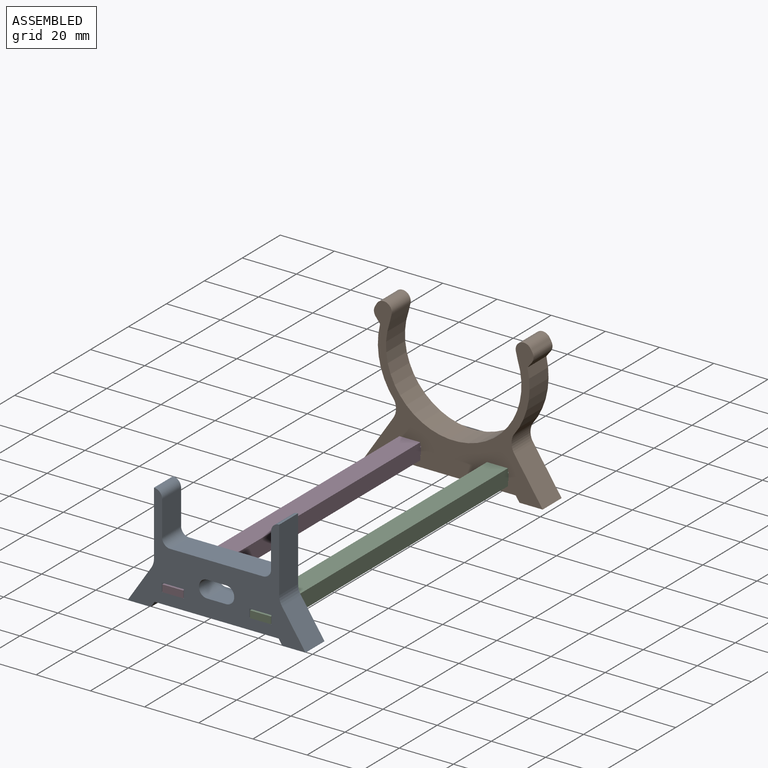
[diagram: assembled view]
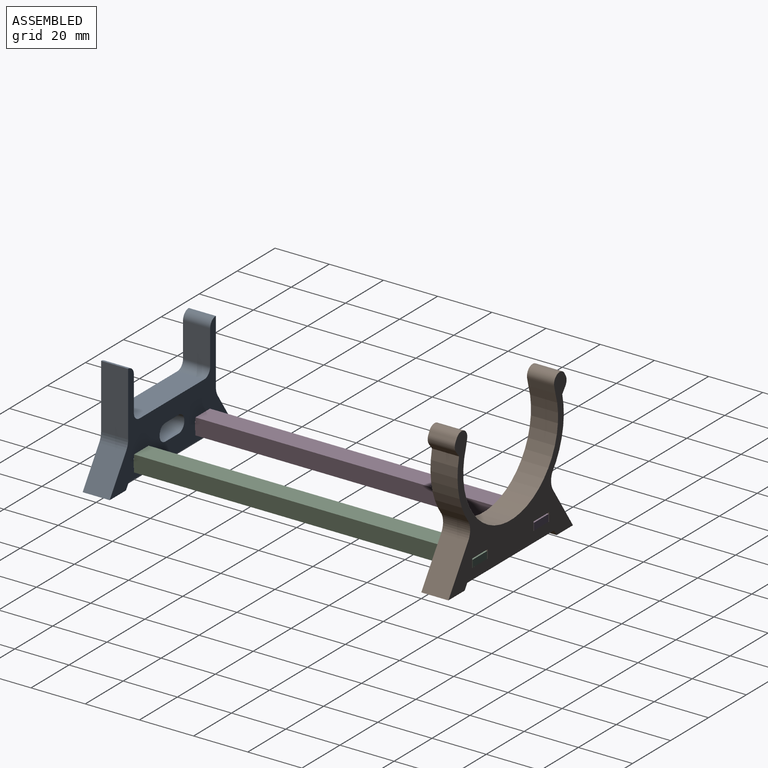
[diagram: assembled view, second angle]
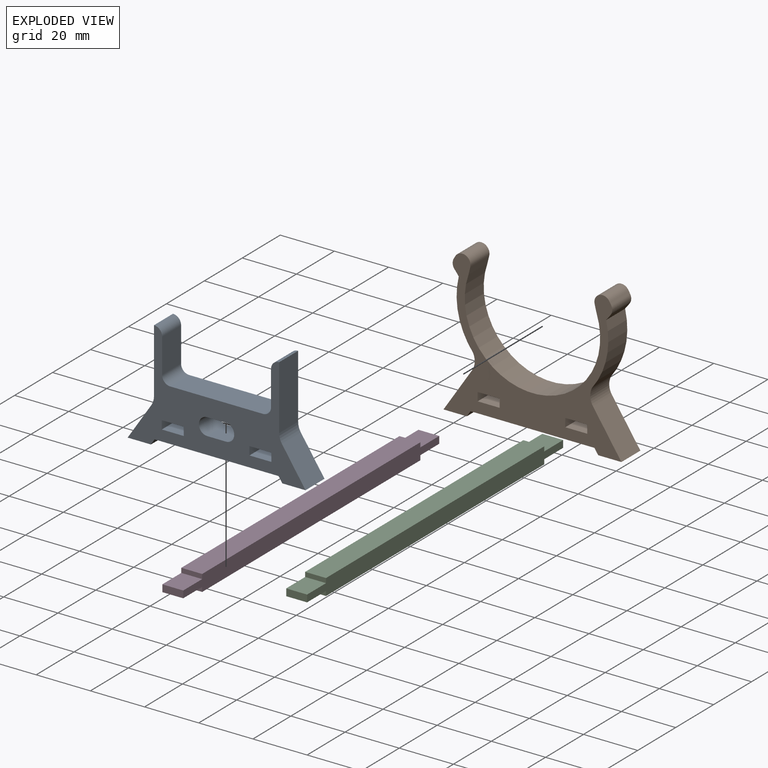
[diagram: exploded view]
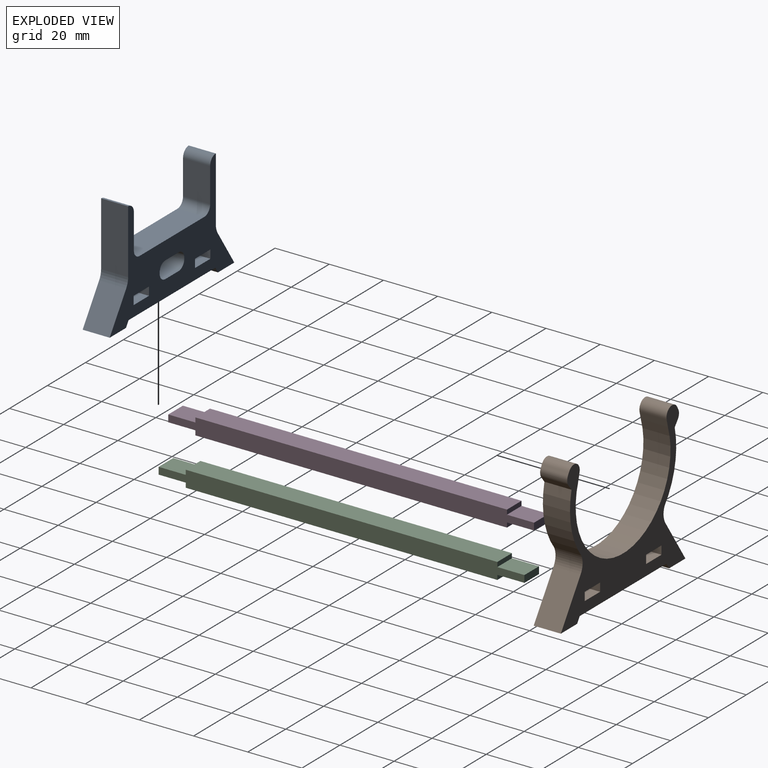
[diagram: exploded view, second angle]
ASSEMBLY  parts=4 mates=3
PART A: 36 faces, bbox 65.7x40.1x10 mm
  f0: plane 10x8.1mm, normal (0,-1,0), area 81mm2, adj f1,f33,f34,f35
  f1: plane 10x3.1mm, normal (-1,0,0), area 31mm2, adj f0,f2,f34,f35
  f2: plane 10x8.1mm, normal (0,1,0), area 81mm2, adj f1,f33,f34,f35
  f3: plane 23.64x10mm, normal (-1,0,0), area 236.4mm2, adj f4,f30,f34,f35
  f4: cylinder r=6mm len=10mm, axis (0,0,-1), area 35.2mm2, adj f3,f5,f34,f35
  f5: plane 13.15x10mm, normal (-0.83,0.55,0), area 157.8mm2, adj f4,f6,f34,f35
  f6: plane 10x8.59mm, normal (0,-1,0), area 85.9mm2, adj f5,f7,f34,f35
  f7: plane 10x2.07mm, normal (0.83,-0.55,0), area 24.9mm2, adj f6,f8,f34,f35
  f8: plane 45.74x10mm, normal (0,-1,0), area 457.4mm2, adj f7,f9,f34,f35
  f9: plane 10x2.07mm, normal (-0.83,-0.55,0), area 24.9mm2, adj f8,f10,f34,f35
  f10: plane 10x8.59mm, normal (0,-1,0), area 85.9mm2, adj f9,f11,f34,f35
  f11: plane 13.15x10mm, normal (0.83,0.55,0), area 157.8mm2, adj f10,f12,f34,f35
  f12: cylinder r=6mm len=10mm, axis (0,0,-1), area 35.2mm2, adj f11,f13,f34,f35
  f13: plane 23.64x10mm, normal (1,0,0), area 236.4mm2, adj f12,f14,f34,f35
  f14: cylinder r=3mm len=10mm, axis (0,0,-1), area 47.1mm2, adj f13,f15,f34,f35
  f15: plane 12.84x10mm, normal (-1,0,0), area 128.3mm2, adj f14,f16,f34,f35
  f16: cylinder r=3mm len=10mm, axis (0,0,-1), area 47.1mm2, adj f15,f17,f34,f35
  f17: plane 34.2x10mm, normal (0,1,0), area 342mm2, adj f16,f18,f34,f35
  f18: cylinder r=3mm len=10mm, axis (0,0,-1), area 47.1mm2, adj f17,f19,f34,f35
  f19: plane 12.84x10mm, normal (1,0,0), area 128.3mm2, adj f18,f30,f34,f35
  f20: cylinder r=3mm len=10mm, axis (0,0,-1), area 47.1mm2, adj f21,f31,f34,f35
  f21: plane 10x0.29mm, normal (-1,0,0), area 2.9mm2, adj f20,f22,f34,f35
  f22: cylinder r=3mm len=10mm, axis (0,0,-1), area 47.1mm2, adj f21,f23,f34,f35
  f23: plane 10x6.98mm, normal (0,1,0), area 69.8mm2, adj f22,f24,f34,f35
  f24: cylinder r=3mm len=10mm, axis (0,0,-1), area 47.1mm2, adj f23,f25,f34,f35
  f25: plane 10x0.29mm, normal (1,0,0), area 2.9mm2, adj f24,f26,f34,f35
  f26: cylinder r=3mm len=10mm, axis (0,0,-1), area 47.1mm2, adj f25,f31,f34,f35
  f27: plane 10x3.1mm, normal (1,0,0), area 31mm2, adj f28,f32,f34,f35
  f28: plane 10x8.1mm, normal (0,-1,0), area 81mm2, adj f27,f29,f34,f35
  f29: plane 10x3.1mm, normal (-1,0,0), area 31mm2, adj f28,f32,f34,f35
  f30: cylinder r=3mm len=10mm, axis (0,0,-1), area 47.1mm2, adj f3,f19,f34,f35
  f31: plane 10x6.98mm, normal (0,-1,0), area 69.8mm2, adj f20,f26,f34,f35
  f32: plane 10x8.1mm, normal (0,1,0), area 81mm2, adj f27,f29,f34,f35
  f33: plane 10x3.1mm, normal (1,0,0), area 31mm2, adj f0,f2,f34,f35
  f34: plane 65.67x40.1mm, normal (0,0,1), area 1017.2mm2, adj f0,f1,f2,f3,f4,f5,f6,f7
  f35: plane 65.67x40.1mm, normal (0,0,-1), area 1017.2mm2, adj f0,f1,f2,f3,f4,f5,f6,f7
PART B: 32 faces, bbox 65.7x53.8x10 mm
  f0: plane 10x8.1mm, normal (0,1,0), area 81mm2, adj f1,f29,f30,f31
  f1: plane 10x3.1mm, normal (1,0,0), area 31mm2, adj f0,f2,f30,f31
  f2: plane 10x8.1mm, normal (0,-1,0), area 81mm2, adj f1,f29,f30,f31
  f3: plane 10x3.1mm, normal (1,0,0), area 31mm2, adj f4,f27,f30,f31
  f4: plane 10x8.1mm, normal (0,-1,0), area 81mm2, adj f3,f5,f30,f31
  f5: plane 10x3.1mm, normal (-1,0,0), area 31mm2, adj f4,f27,f30,f31
  f6: cylinder r=3mm len=10mm, axis (0,0,-1), area 85.7mm2, adj f7,f28,f30,f31
  f7: plane 10x1.03mm, normal (-0.87,0.5,0), area 11.9mm2, adj f6,f8,f30,f31
  f8: cylinder r=3mm len=10mm, axis (0,0,-1), area 35.7mm2, adj f7,f9,f30,f31
  f9: plane 10x2.08mm, normal (-0.79,-0.62,0), area 26.4mm2, adj f8,f10,f30,f31
  f10: cylinder r=28mm len=24.17mm, axis (0,0,-1), area 256.4mm2, adj f9,f11,f30,f31
  f11: cylinder r=6mm len=10mm, axis (0,0,-1), area 61.2mm2, adj f10,f12,f30,f31
  f12: plane 15.86x10.53mm, normal (-0.83,0.55,0), area 190.4mm2, adj f11,f13,f30,f31
  f13: plane 10x8.59mm, normal (0,-1,0), area 85.9mm2, adj f12,f14,f30,f31
  f14: plane 10x2.07mm, normal (0.83,-0.55,0), area 24.9mm2, adj f13,f15,f30,f31
  f15: plane 45.74x10mm, normal (0,-1,0), area 457.4mm2, adj f14,f16,f30,f31
  f16: plane 10x2.07mm, normal (-0.83,-0.55,0), area 24.9mm2, adj f15,f17,f30,f31
  f17: plane 10x8.59mm, normal (0,-1,0), area 85.9mm2, adj f16,f18,f30,f31
  f18: plane 15.8x10.49mm, normal (0.83,0.55,0), area 189.6mm2, adj f17,f19,f30,f31
  f19: cylinder r=6mm len=10mm, axis (0,0,-1), area 64.6mm2, adj f18,f20,f30,f31
  f20: cylinder r=28mm len=23.93mm, axis (0,0,-1), area 253.3mm2, adj f19,f21,f30,f31
  f21: plane 10x2.08mm, normal (0.79,-0.62,0), area 26.4mm2, adj f20,f22,f30,f31
  f22: cylinder r=3mm len=10mm, axis (0,0,-1), area 35.7mm2, adj f21,f23,f30,f31
  f23: plane 10x1.03mm, normal (0.87,0.5,0), area 11.9mm2, adj f22,f24,f30,f31
  f24: cylinder r=3mm len=10mm, axis (0,0,-1), area 85.7mm2, adj f23,f25,f30,f31
  f25: plane 10x2.67mm, normal (-0.97,-0.24,0), area 27.5mm2, adj f24,f26,f30,f31
  f26: cylinder r=25mm len=50mm, axis (0,0,-1), area 953.3mm2, adj f25,f28,f30,f31
  f27: plane 10x8.1mm, normal (0,1,0), area 81mm2, adj f3,f5,f30,f31
  f28: plane 10x2.67mm, normal (0.97,-0.24,0), area 27.5mm2, adj f6,f26,f30,f31
  f29: plane 10x3.1mm, normal (-1,0,0), area 31mm2, adj f0,f2,f30,f31
  f30: plane 65.67x53.83mm, normal (0,0,1), area 1031.2mm2, adj f0,f1,f2,f3,f4,f5,f6,f7
  f31: plane 65.67x53.83mm, normal (0,0,-1), area 1031.2mm2, adj f0,f1,f2,f3,f4,f5,f6,f7
PART C: 14 faces, bbox 135x7.7x6 mm
  f0: plane 135x6mm, normal (0,-1,0), area 742mm2, adj f1,f3,f4,f5,f6,f7,f8,f9
  f1: plane 7.7x2.6mm, normal (1,0,0), area 20mm2, adj f0,f2,f3,f4
  f2: plane 135x6mm, normal (0,1,0), area 742mm2, adj f1,f3,f4,f5,f6,f7,f8,f9
  f3: plane 10x7.7mm, normal (0,0,1), area 77mm2, adj f0,f1,f2,f5
  f4: plane 10x7.7mm, normal (0,0,-1), area 77mm2, adj f0,f1,f2,f10
  f5: plane 7.7x1.7mm, normal (1,0,0), area 13.1mm2, adj f0,f2,f3,f12
  f6: plane 7.7x2.6mm, normal (-1,0,0), area 20mm2, adj f0,f2,f7,f8
  f7: plane 10x7.7mm, normal (0,0,1), area 77mm2, adj f0,f2,f6,f9
  f8: plane 10x7.7mm, normal (0,0,-1), area 77mm2, adj f0,f2,f6,f11
  f9: plane 7.7x1.7mm, normal (-1,0,0), area 13.1mm2, adj f0,f2,f7,f12
  f10: plane 7.7x1.7mm, normal (1,0,0), area 13.1mm2, adj f0,f2,f4,f13
  f11: plane 7.7x1.7mm, normal (-1,0,0), area 13.1mm2, adj f0,f2,f8,f13
  f12: plane 115x7.7mm, normal (0,0,1), area 885.5mm2, adj f0,f2,f5,f9
  f13: plane 115x7.7mm, normal (0,0,-1), area 885.5mm2, adj f0,f2,f10,f11
PART D: same geometry as C
PLACE A rot(axis=(1,0,0),90deg) t=(-12.23,-14.56,20.79)mm
PLACE B rot(axis=(1,0,0),90deg) t=(-10.38,110.44,-3.01)mm
PLACE C rot(axis=(0,0,-1),90deg) t=(3.94,42.94,-11.94)mm
PLACE D rot(axis=(0,0,1),90deg) t=(-28.41,42.94,-11.94)mm
MATE fastened A.f34 <-> C.f1  axis (0,-1,0) through (3.94,-24.56,-13.24)mm
MATE fastened A.f34 <-> D.f6  axis (0,-1,0) through (-28.41,-24.56,-13.24)mm
MATE fastened B.f31 <-> C.f6  axis (0,1,0) through (3.94,110.44,-13.24)mm
